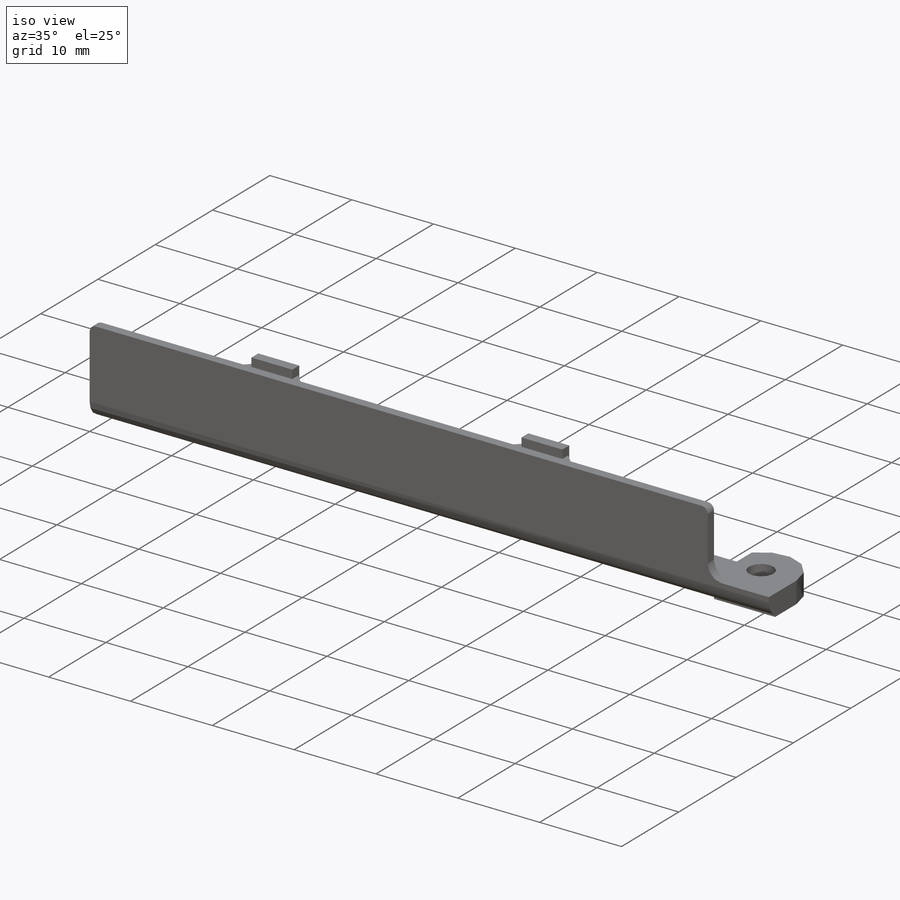
[diagram: iso view]
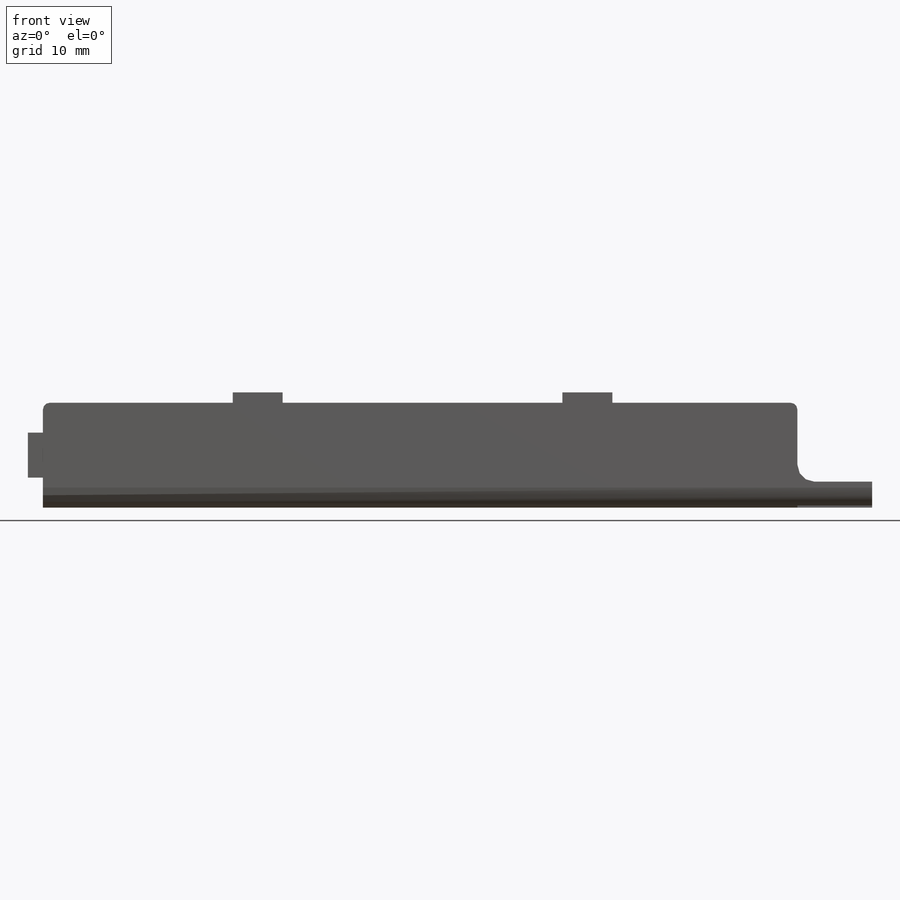
[diagram: front view]
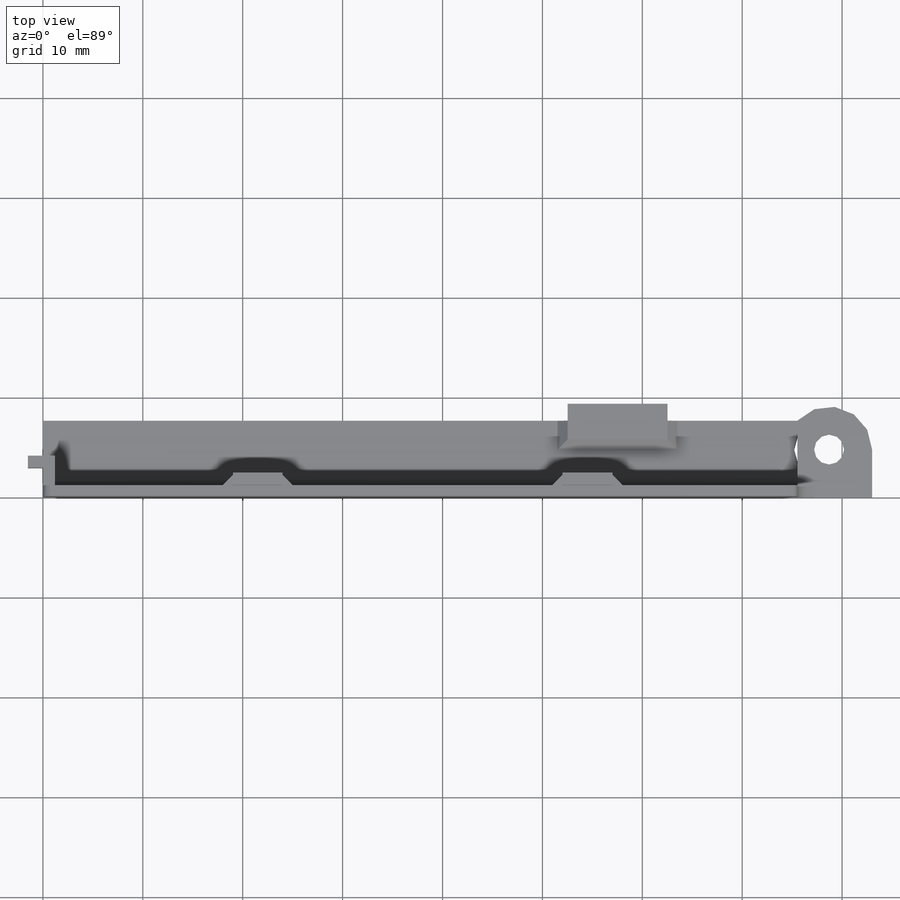
[diagram: top view]
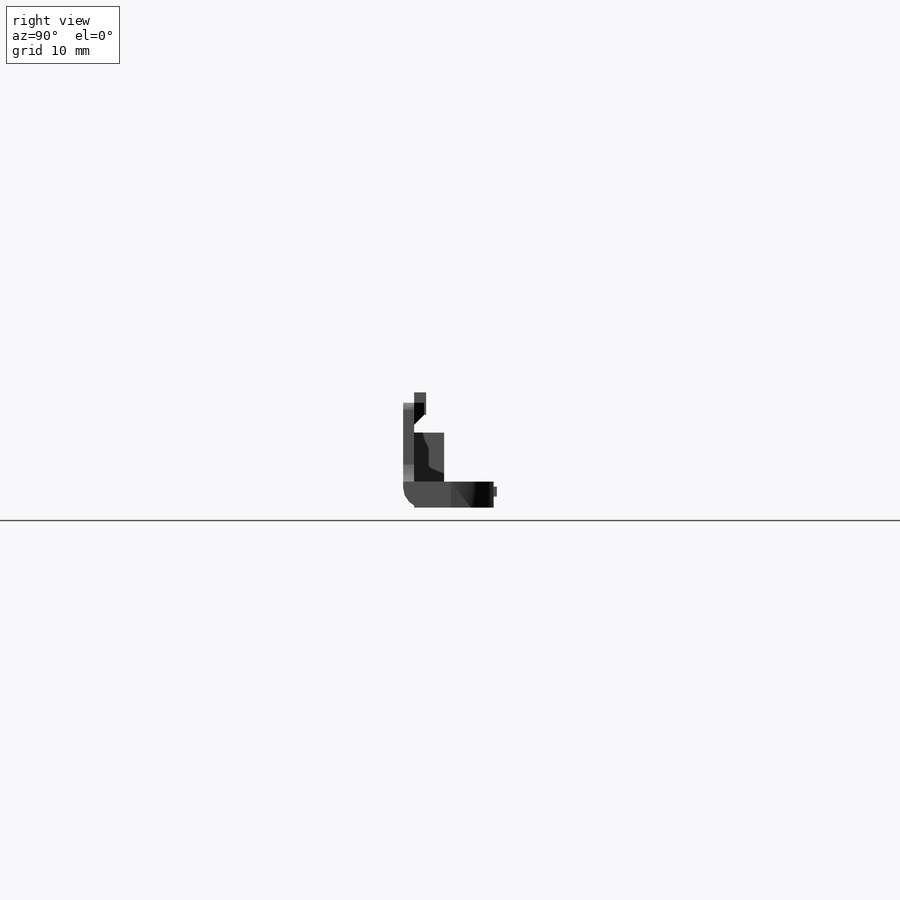
[diagram: right view]
SOLIDWORKS PART (.sldprt)
format: sldprt  version: not decoded by parser v0  size: 384,512 bytes
history: native  units: mm
features: sketch x10, extrude x6, cut_extrude x4, plane x3, chamfer x2, material x1, fillet x1 (+9 scaffold rows collapsed)
feature tree (36):
  scaffold x9  (default folders/planes/origin — collapsed)
  material  "Material <not specified>"
  plane  "Спереди"
  plane  "Сверху"
  plane  "Справа"
  sketch  "Sketch1"  dims[c1.D1=2.0mm c1.D2=~19.414535mm c2.D2=90.0deg c3.D2=7.7mm c3.D3=10.5mm c3.D4=1.1mm]
  extrude  "Boss-Extrude1"  Depth=83mm
  sketch  "Sketch6"  dims[c1.D2=4.3mm c1.D1=4.8mm c2.D2=~9.66194mm c2.D3=2.9mm]
  extrude  "Boss-Extrude2"  Depth=2.6mm
  sketch  "Sketch7"
  cut_extrude  "Cut-Extrude1"  [1 undecoded]
  sketch  "Sketch9"
  cut_extrude  "Cut-Extrude2"  [1 undecoded]
  sketch  "Sketch10"  dims[D1=3.4mm D2=~7.474902mm]
  cut_extrude  "Cut-Extrude3"  [1 undecoded]
  fillet  "Fillet1"  Radius=0.7mm
  sketch  "Sketch11"  dims[D1=7.0mm]
  cut_extrude  "Cut-Extrude4"  Depth=1.7mm
  sketch  "Sketch12"  dims[D1=13.0mm D2=10.0mm]
  extrude  "Boss-Extrude3"  Depth=1mm
  chamfer  "Chamfer1"  Distance=1mm Angle=45deg
  sketch  "Sketch14"  dims[D1=3.0mm D2=1.2mm]
  extrude  "Boss-Extrude4"  Depth=3mm
  sketch  "Sketch15"  dims[D1=1.2mm D2=4.5mm]
  extrude  "Boss-Extrude5"  Depth=1.5mm
  sketch  "Sketch16"  dims[D1=5.0mm D2=19.0mm D3=52.0mm]
  extrude  "Boss-Extrude6"  Depth=1.2mm
  chamfer  "Chamfer2"  Distance=1mm Angle=45deg
decode coverage: 18 of 23 modeling features carry decoded parameters
note: ~ marks probable driven/reference dimensions
note: 3 parameter values undecoded
summary: no parameter record found for 3 features
note: suppression state not decoded; provenance and decode notes live in map.json
